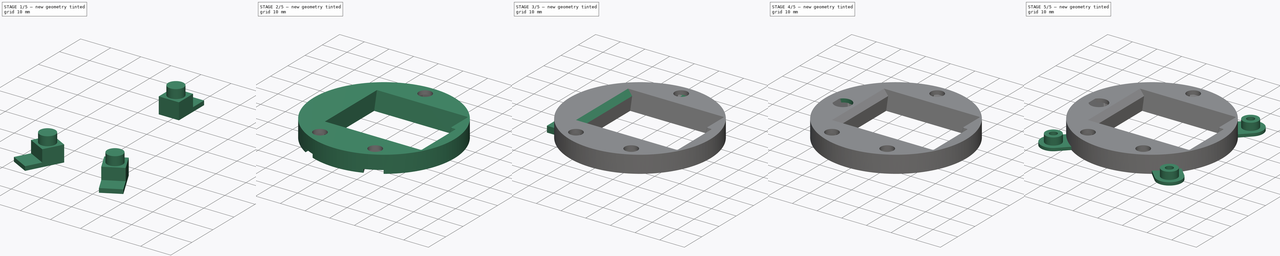
[diagram: build sequence overview — one tinted view per stage of 5, left to right]
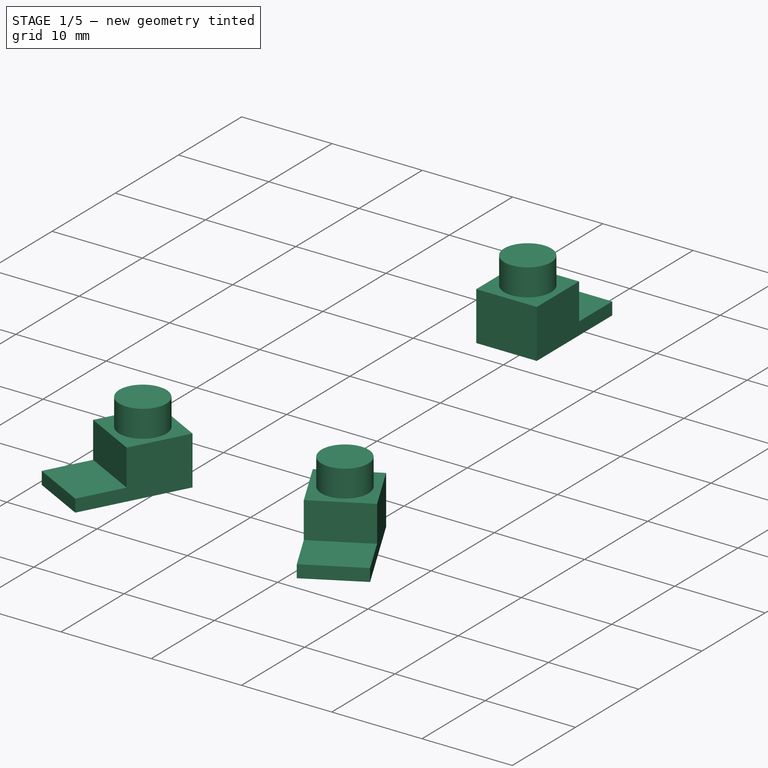
[diagram: stage 1 of 5 — iso view after this stage's code; geometry added in this stage tinted green]
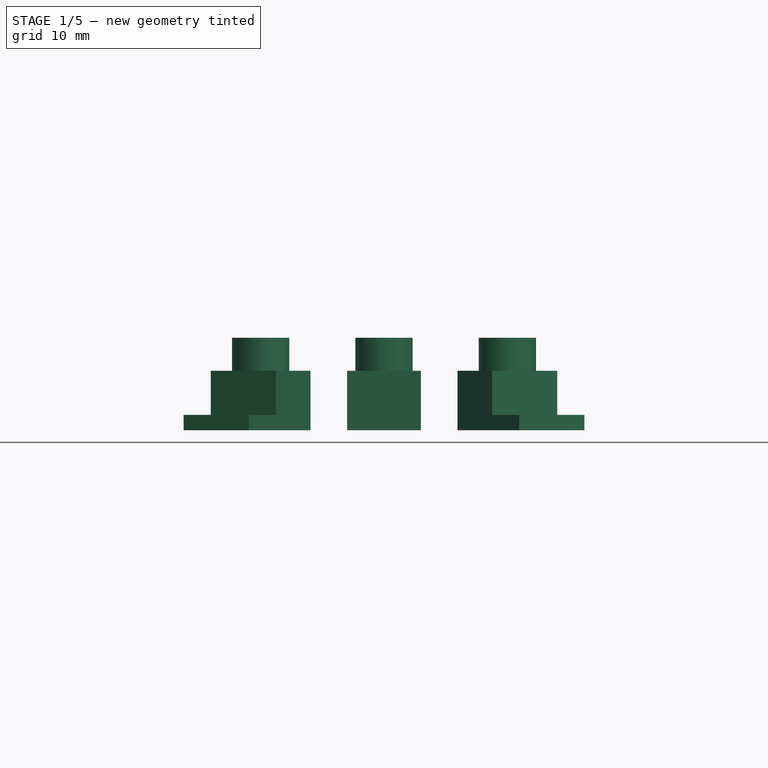
[diagram: stage 1 of 5 — front view after this stage's code; geometry added in this stage tinted green]
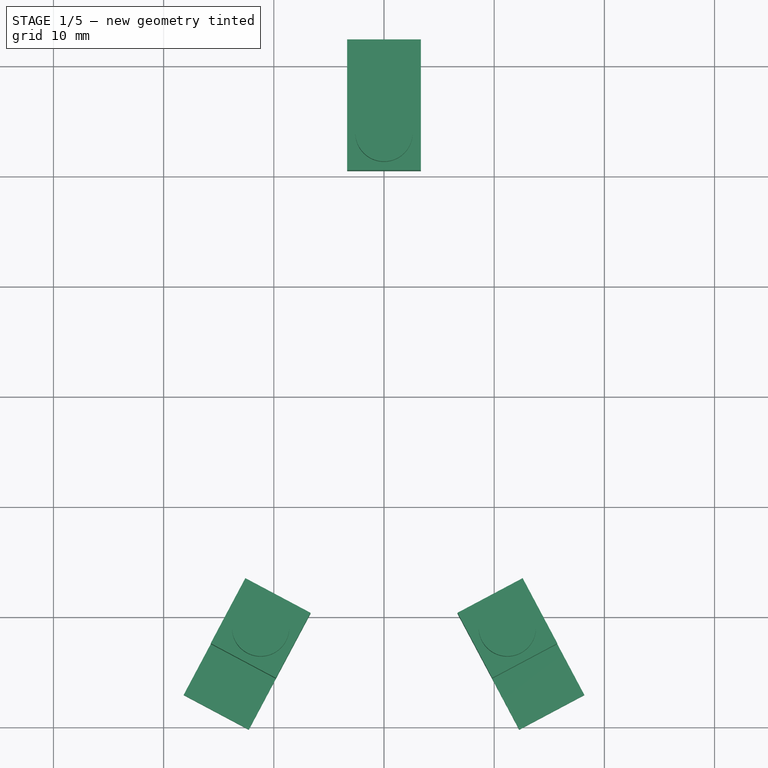
[diagram: stage 1 of 5 — top view after this stage's code; geometry added in this stage tinted green]
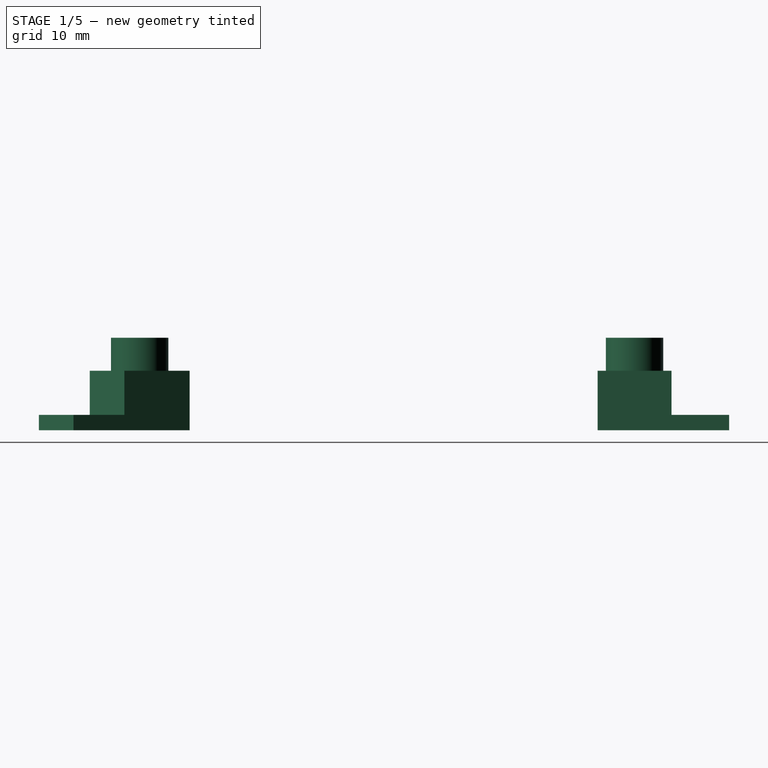
[diagram: stage 1 of 5 — right view after this stage's code; geometry added in this stage tinted green]
FCSTD DOCUMENT  (FreeCAD 0.16R6706 (Git))
Label: bezel_small
License: All rights reserved
LicenseURL: http://en.wikipedia.org/wiki/All_rights_reserved
objects: Sketcher::SketchObject×13, PartDesign::Pad×11, Part::FeaturePython×5, Part::Cut×3, PartDesign::Pocket×2, Part::Chamfer×2, Part::Cone×1, Part::MultiFuse×1, PartDesign::Draft×1, Part::Fillet×1, Part::Compound×1
note: 54 computed .brp shape members not serialized (recipe doc carries the construction recipe); baked Part::Feature solids carry a one-line shape summary decoded from their .brp

FEATURE [Sketcher::SketchObject] Sketch015  label="Sketch (wiring path)"
  sketch-geometry (4):
    g0: LineSegment StartX=3.35 StartY=32.4367 StartZ=0 EndX=-3.35 EndY=32.4367 EndZ=0
    g1: LineSegment StartX=-3.35 StartY=32.4367 StartZ=0 EndX=-3.35 EndY=20.5 EndZ=0
    g2: LineSegment StartX=-3.35 StartY=20.5 StartZ=0 EndX=3.35 EndY=20.5 EndZ=0
    g3: LineSegment StartX=3.35 StartY=20.5 StartZ=0 EndX=3.35 EndY=32.4367 EndZ=0
  constraints (11):
    c: Coincident(g0,g1)
    c: Coincident(g1,g2)
    c: Coincident(g2,g3)
    c: Coincident(g3,g0)
    c: Horizontal(g0)
    c: Horizontal(g2)
    c: Vertical(g1)
    c: Vertical(g3)
    c: DistanceX(g0,g0) = 6.7
    c: Symmetric(g2,g1,g-2)
    c: DistanceY(g-1,g2) = 20.5
FEATURE [PartDesign::Pad] Pad013  label="Pad (wiring path)"
  Length = 1.4
  Length2 = 100
  Sketch = -> Sketch015
  Type = 0
FEATURE [Sketcher::SketchObject] Sketch016  label="Sketch (button body)"
  ExternalGeometry = -> [Pad013]
  Placement = pos=(0,0,1.4) rot=(0,0,1;0rad)
  Support = -> Pad013 [Face6]
  sketch-geometry (4):
    g0: LineSegment StartX=-3.35 StartY=20.5 StartZ=0 EndX=3.35 EndY=20.5 EndZ=0
    g1: LineSegment StartX=3.35 StartY=20.5 StartZ=0 EndX=3.35 EndY=27.2 EndZ=0
    g2: LineSegment StartX=3.35 StartY=27.2 StartZ=0 EndX=-3.35 EndY=27.2 EndZ=0
    g3: LineSegment StartX=-3.35 StartY=27.2 StartZ=0 EndX=-3.35 EndY=20.5 EndZ=0
  constraints (11):
    c: Coincident(g0,g1)
    c: Coincident(g1,g2)
    c: Coincident(g2,g3)
    c: Coincident(g3,g0)
    c: Horizontal(g0)
    c: Horizontal(g2)
    c: Vertical(g1)
    c: Vertical(g3)
    c: Coincident(g0,g-3)
    c: Coincident(g0,g-3)
    c: Equal(g1,g2)
FEATURE [PartDesign::Pad] Pad014  label="Pad (button body)"
  Length = 4
  Length2 = 100
  Sketch = -> Sketch016
  Type = 0
  expr: Length = 5 + 0.4 - 1.4
FEATURE [Sketcher::SketchObject] Sketch018  label="Sketch (button shaft)"
  ExternalGeometry = -> [Pad014]
  Placement = pos=(0,0,5.4) rot=(0,0,1;0rad)
  Support = -> Pad014 [Face11]
  sketch-geometry (3):
    g0: Circle CenterX=0 CenterY=23.85 CenterZ=0 NormalX=0 NormalY=0 NormalZ=1 Radius=2.6
    g1: LineSegment [constr] StartX=-3.35 StartY=27.2 StartZ=0 EndX=3.35 EndY=20.5 EndZ=0
    g2: LineSegment [constr] StartX=3.35 StartY=27.2 StartZ=0 EndX=-3.35 EndY=20.5 EndZ=0
  constraints (7):
    c: Radius(g0) = 2.6
    c: Coincident(g1,g-3)
    c: Coincident(g1,g-4)
    c: Coincident(g2,g-4)
    c: Coincident(g2,g-3)
    c: PointOnObject(g0,g2)
    c: PointOnObject(g0,g1)
FEATURE [PartDesign::Pad] Pad016  label="Pad (button shaft)"
  Length = 3
  Length2 = 100
  Sketch = -> Sketch018
  Type = 0
FEATURE [Part::FeaturePython] Clone012  label="Clone of Pad (button shaft left)"  # Draft clone (typed FeaturePython)
  Objects = -> [Pad016]
  Placement = pos=(0,0,0) rot=(0,0,1;2.6529rad)
  Scale = (1,1,1)
FEATURE [Part::FeaturePython] Clone013  label="Clone of Pad (button shaft right)"  # Draft clone (typed FeaturePython)
  Objects = -> [Pad016]
  Placement = pos=(0,0,0) rot=(0,0,1;3.63029rad)
  Scale = (1,1,1)
FEATURE [Part::Compound] Compound
  Links = -> [Pad016,Clone012,Clone013]
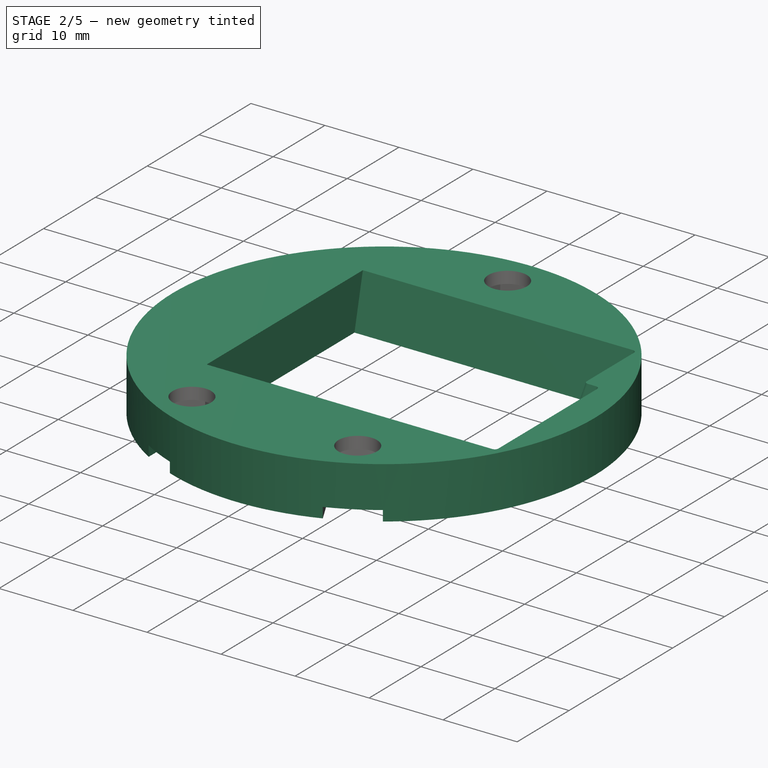
[diagram: stage 2 of 5 — iso view after this stage's code; geometry added in this stage tinted green]
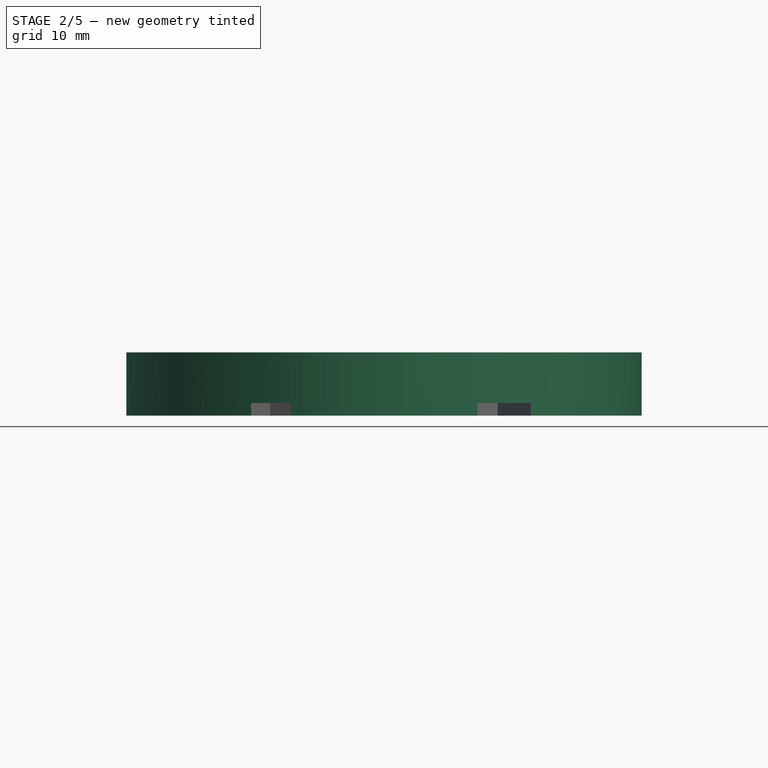
[diagram: stage 2 of 5 — front view after this stage's code; geometry added in this stage tinted green]
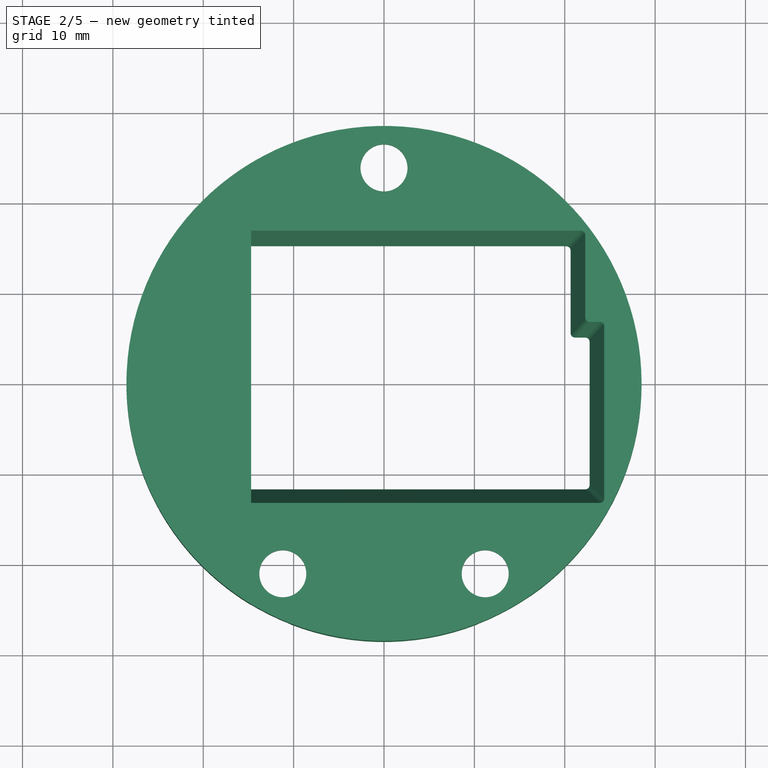
[diagram: stage 2 of 5 — top view after this stage's code; geometry added in this stage tinted green]
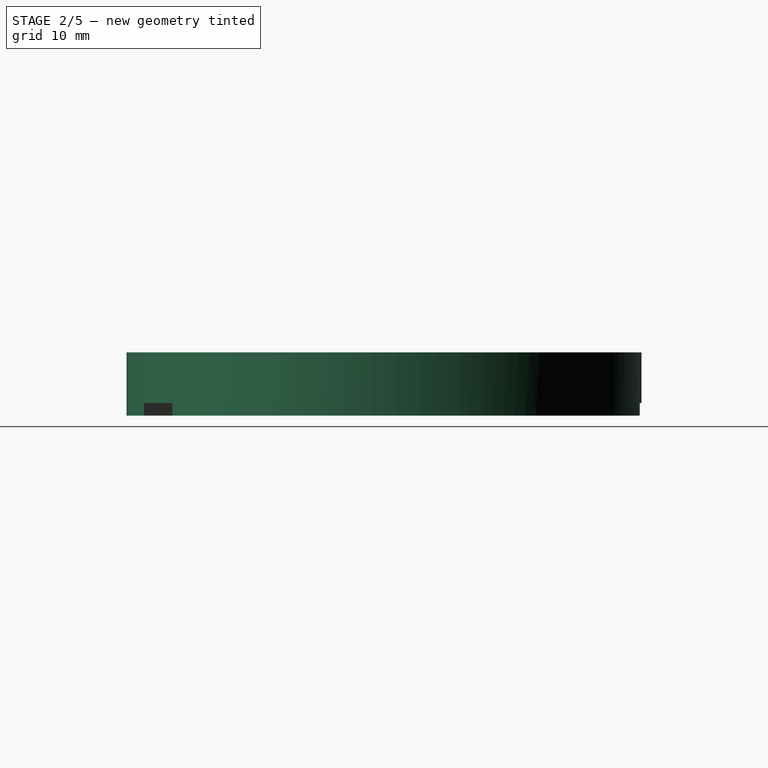
[diagram: stage 2 of 5 — right view after this stage's code; geometry added in this stage tinted green]
FEATURE [Sketcher::SketchObject] Sketch010  label="Sketch (left mount)"
  expr: Constraints[5] = 57 / 2
  sketch-geometry (2):
    g0: ArcOfCircle CenterX=0 CenterY=0 CenterZ=0 NormalX=0 NormalY=0 NormalZ=1 Radius=28.5 StartAngle=2.11273 EndAngle=4.17046
    g1: LineSegment StartX=-14.7 StartY=24.4164 StartZ=0 EndX=-14.7 EndY=-24.4164 EndZ=0
  constraints (6):
    c: Coincident(g0,g-1)
    c: Coincident(g1,g0)
    c: Coincident(g1,g0)
    c: Vertical(g1)
    c: DistanceX(g0,g-1) = 14.7
    c: Radius(g0) = 28.5
FEATURE [PartDesign::Pad] Pad008  label="Pad (left mount)"
  Length = 7
  Length2 = 100
  Sketch = -> Sketch010
  Type = 0
FEATURE [Sketcher::SketchObject] Sketch014
  expr: Constraints[1] = 57 / 2
  sketch-geometry (10):
    g0: Circle CenterX=0 CenterY=0 CenterZ=0 NormalX=0 NormalY=0 NormalZ=1 Radius=28.5
    g1: LineSegment StartX=-20.65 StartY=15.3 StartZ=0 EndX=-20.65 EndY=5.2 EndZ=0
    g2: LineSegment StartX=-20.65 StartY=5.2 StartZ=0 EndX=-22.75 EndY=5.2 EndZ=0
    g3: LineSegment StartX=-22.75 StartY=5.2 StartZ=0 EndX=-22.75 EndY=-11.6 EndZ=0
    g4: LineSegment StartX=-22.75 StartY=-11.6 StartZ=0 EndX=22.75 EndY=-11.6 EndZ=0
    g5: LineSegment StartX=22.75 StartY=-11.6 StartZ=0 EndX=22.75 EndY=5.2 EndZ=0
    g6: LineSegment StartX=22.75 StartY=5.2 StartZ=0 EndX=20.65 EndY=5.2 EndZ=0
    g7: LineSegment StartX=20.65 StartY=5.2 StartZ=0 EndX=20.65 EndY=15.3 EndZ=0
    g8: LineSegment StartX=20.65 StartY=15.3 StartZ=0 EndX=-20.65 EndY=15.3 EndZ=0
    g9: GeomPoint [constr] X=0 Y=-28.5 Z=0
  constraints (28):
    c: Coincident(g0,g-1)
    c: Radius(g0) = 28.5
    c: Vertical(g1)
    c: Coincident(g2,g1)
    c: Horizontal(g2)
    c: Coincident(g3,g2)
    c: Vertical(g3)
    c: Coincident(g4,g3)
    c: Horizontal(g4)
    c: Coincident(g5,g4)
    c: Vertical(g5)
    c: Horizontal(g6)
    c: Coincident(g7,g6)
    c: Vertical(g7)
    c: Coincident(g8,g7)
    c: Coincident(g8,g1)
    c: Horizontal(g8)
    c: Equal(g2,g6)
    c: Equal(g1,g7)
    c: Coincident(g5,g6)
    c: Symmetric(g7,g1,g-2)
    c: DistanceY(g5,g5) = 16.8
    c: DistanceX(g4,g4) = 45.5
    c: DistanceX(g8,g8) = 41.3
    c: DistanceY(g4,g7) = 26.9
    c: PointOnObject(g9,g0)
    c: PointOnObject(g9,g-2)
    c: DistanceY(g9,g4) = 16.9
FEATURE [PartDesign::Pad] Pad012
  Length = 7
  Length2 = 100
  Sketch = -> Sketch014
  Type = 0
FEATURE [PartDesign::Draft] Draft  label="Draft (clock bezel)"
  Angle = 13
  Base = -> Pad012 [Face9,Face2,Face3,Face4,Face5,Face6,Face7,Face8]
  NeutralPlane = -> Pad012 [Face10]
  Reversed = true
FEATURE [Part::Fillet] Fillet  label="Fillet (clock bezel)"
  Base = -> Draft
  Edges = 8 edges r=0.5: [Edge4,Edge5,Edge8,Edge11,Edge14,Edge17,Edge20,Edge23]
FEATURE [Part::Cut] Cut002  label="Cut (clock bezel)"
  Base = -> Fillet
  Tool = -> Compound
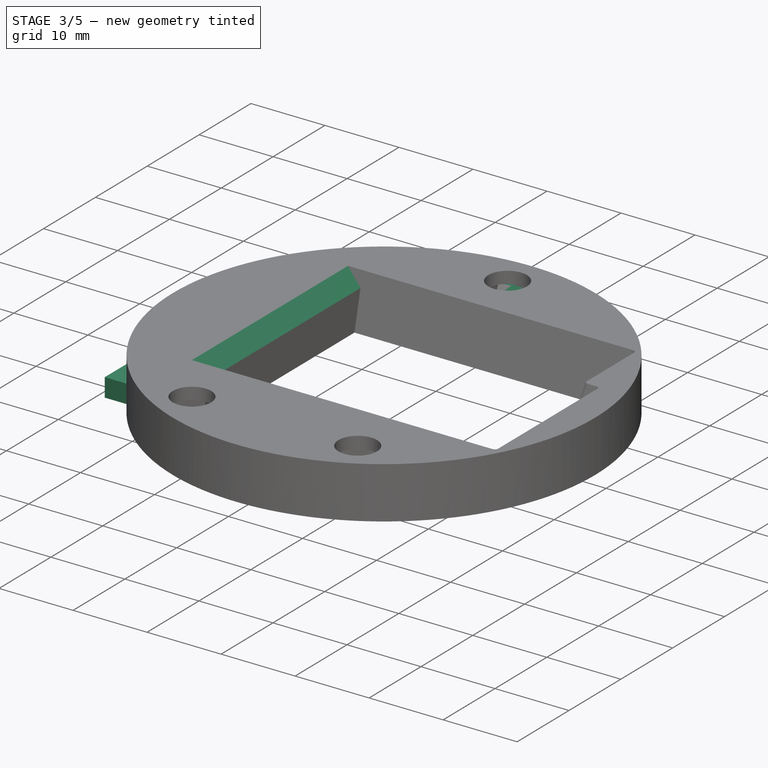
[diagram: stage 3 of 5 — iso view after this stage's code; geometry added in this stage tinted green]
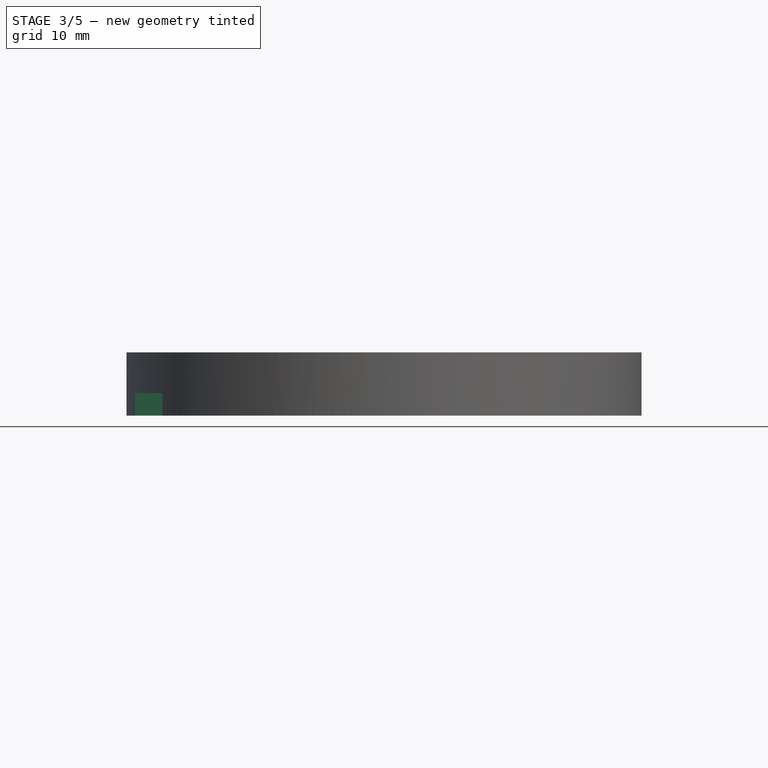
[diagram: stage 3 of 5 — front view after this stage's code; geometry added in this stage tinted green]
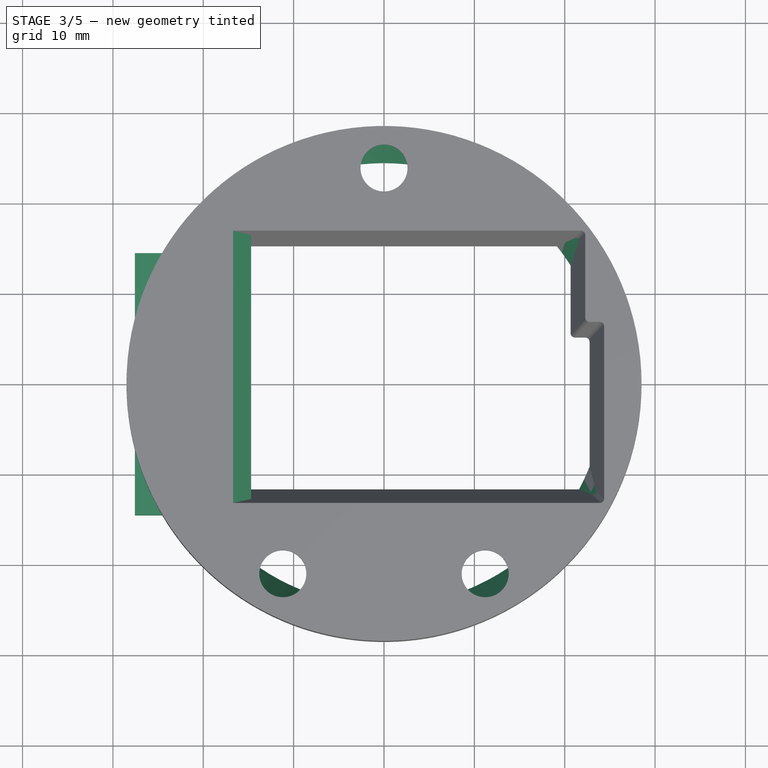
[diagram: stage 3 of 5 — top view after this stage's code; geometry added in this stage tinted green]
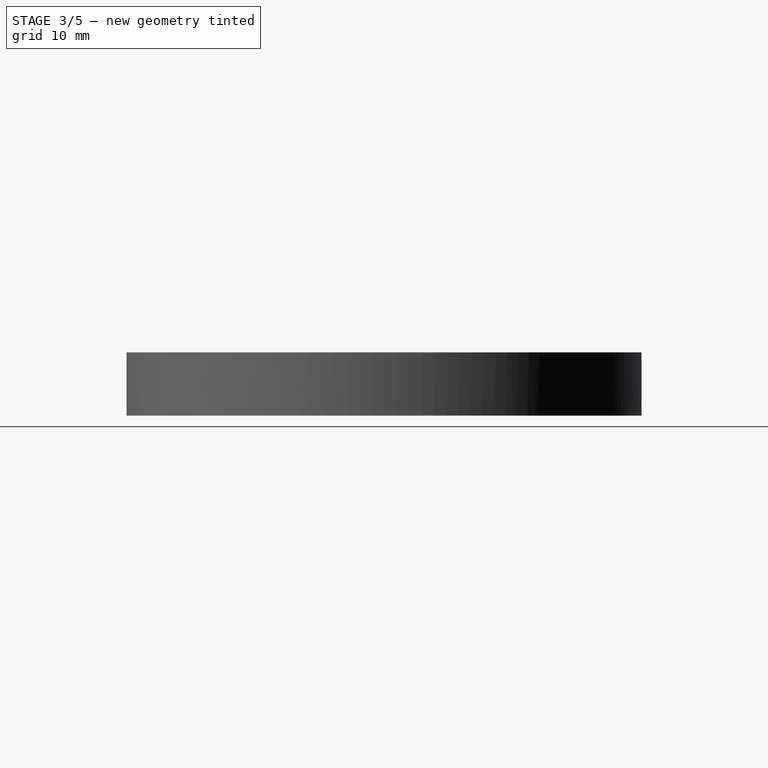
[diagram: stage 3 of 5 — right view after this stage's code; geometry added in this stage tinted green]
FEATURE [Sketcher::SketchObject] Sketch004  label="Sketch (ring)"
  expr: Constraints[1] = 28.5 - 4
  expr: Constraints[3] = 57 / 2
  sketch-geometry (2):
    g0: Circle CenterX=0 CenterY=0 CenterZ=0 NormalX=0 NormalY=0 NormalZ=1 Radius=24.5
    g1: Circle CenterX=0 CenterY=0 CenterZ=0 NormalX=0 NormalY=0 NormalZ=1 Radius=28.5
  constraints (4):
    c: Coincident(g0,g-1)
    c: Radius(g0) = 24.5
    c: Coincident(g1,g-1)
    c: Radius(g1) = 28.5
FEATURE [PartDesign::Pad] Pad002  label="Pad (ring)"
  Length = 7
  Length2 = 100
  Sketch = -> Sketch004
  Type = 0
FEATURE [Part::Cone] Cone
  Angle = 360
  Height = 7
  Radius1 = 24.5
  Radius2 = 28.5
  expr: Radius1 = 57 / 2 - 4
  expr: Radius2 = 57 / 2
FEATURE [Part::Cut] Cut  label="Cut (ring chamfer)"
  Base = -> Pad002
  Tool = -> Cone
FEATURE [Part::Chamfer] Chamfer001  label="Chamfer (left mount)"
  Base = -> Pad008
  Edges = 1 edges r=2: [Edge6]
FEATURE [Sketcher::SketchObject] Sketch011  label="Sketch (enc wiring cutout)"
  sketch-geometry (7):
    g0: LineSegment [constr] StartX=0 StartY=0 StartZ=0 EndX=-21.5 EndY=-2e-12 EndZ=0
    g1: LineSegment StartX=-15.43 StartY=14.5 StartZ=0 EndX=-15.43 EndY=-14.5 EndZ=0
    g2: LineSegment StartX=-15.43 StartY=-14.5 StartZ=0 EndX=-27.57 EndY=-14.5 EndZ=0
    g3: LineSegment StartX=-27.57 StartY=-14.5 StartZ=0 EndX=-27.57 EndY=14.5 EndZ=0
    g4: LineSegment StartX=-27.57 StartY=14.5 StartZ=0 EndX=-15.43 EndY=14.5 EndZ=0
    g5: LineSegment [constr] StartX=-27.57 StartY=14.5 StartZ=0 EndX=-15.43 EndY=-14.5 EndZ=0
    g6: LineSegment [constr] StartX=-15.43 StartY=14.5 StartZ=0 EndX=-27.57 EndY=-14.5 EndZ=0
  constraints (18):
    c: Coincident(g0,g-1)
    c: Angle(g-2,g0) = 1.5708
    c: Coincident(g1,g2)
    c: Coincident(g2,g3)
    c: Coincident(g3,g4)
    c: Coincident(g4,g1)
    c: Parallel(g4,g2)
    c: Parallel(g1,g3)
    c: Perpendicular(g4,g1)
    c: Symmetric(g1,g1,g0)
    c: Distance(g4) = 12.14
    c: Distance(g1) = 29
    c: Coincident(g5,g3)
    c: Coincident(g5,g1)
    c: Coincident(g6,g1)
    c: Coincident(g6,g2)
    c: PointOnObject(g0,g5)
    c: Distance(g0) = 21.5
FEATURE [PartDesign::Pad] Pad009  label="Pad (enc wiring cutout)"
  Length = 2.5
  Length2 = 100
  Sketch = -> Sketch011
  Type = 0
FEATURE [Part::MultiFuse] Fusion  label="Fusion (left mount)"
  Shapes = -> [Cut,Chamfer001]
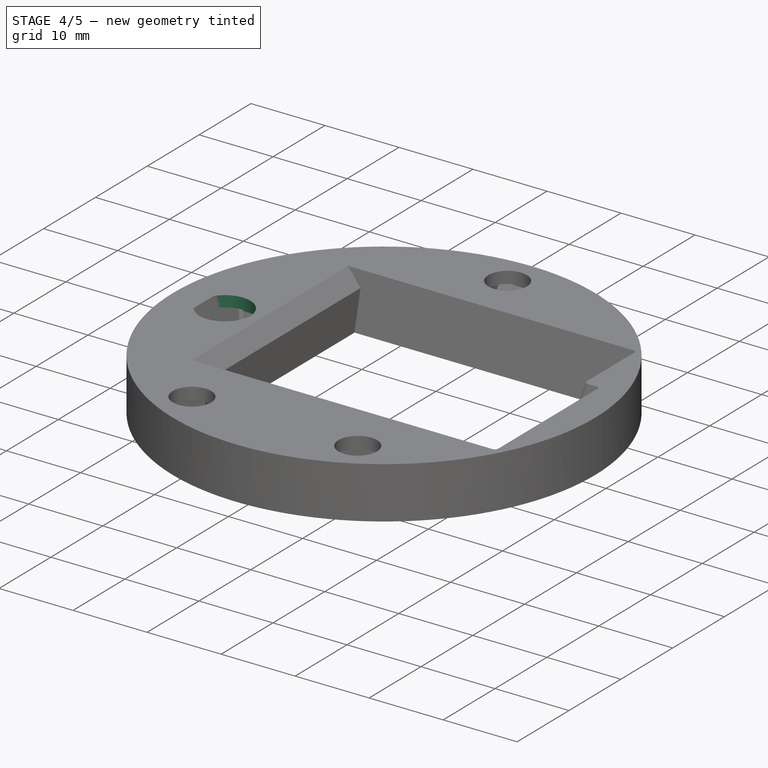
[diagram: stage 4 of 5 — iso view after this stage's code; geometry added in this stage tinted green]
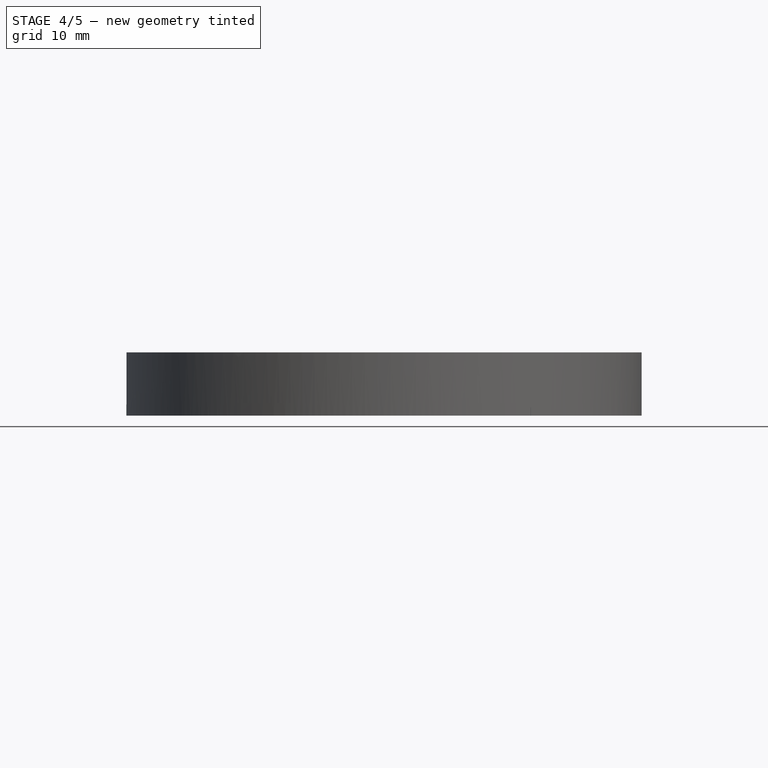
[diagram: stage 4 of 5 — front view after this stage's code; geometry added in this stage tinted green]
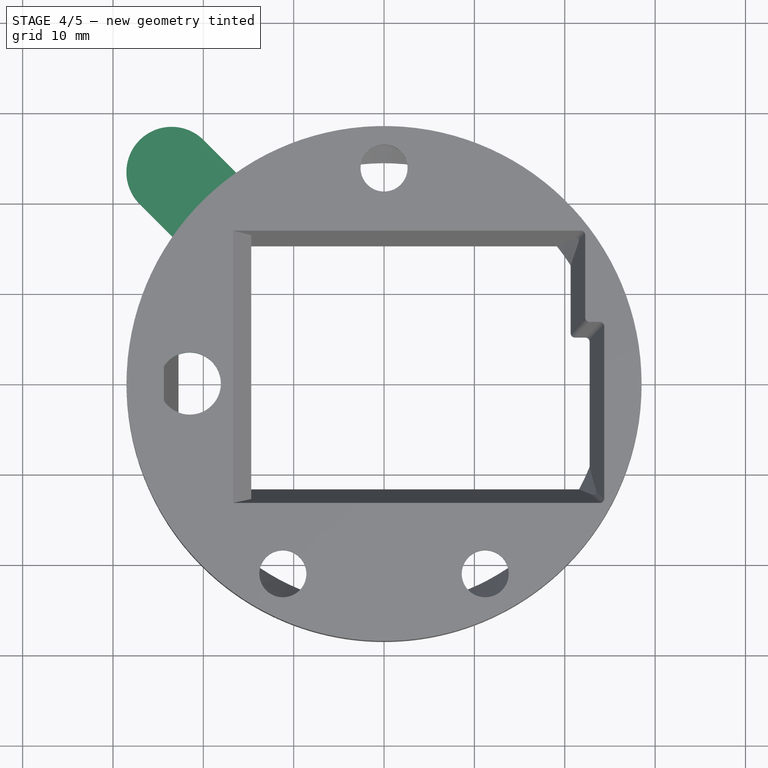
[diagram: stage 4 of 5 — top view after this stage's code; geometry added in this stage tinted green]
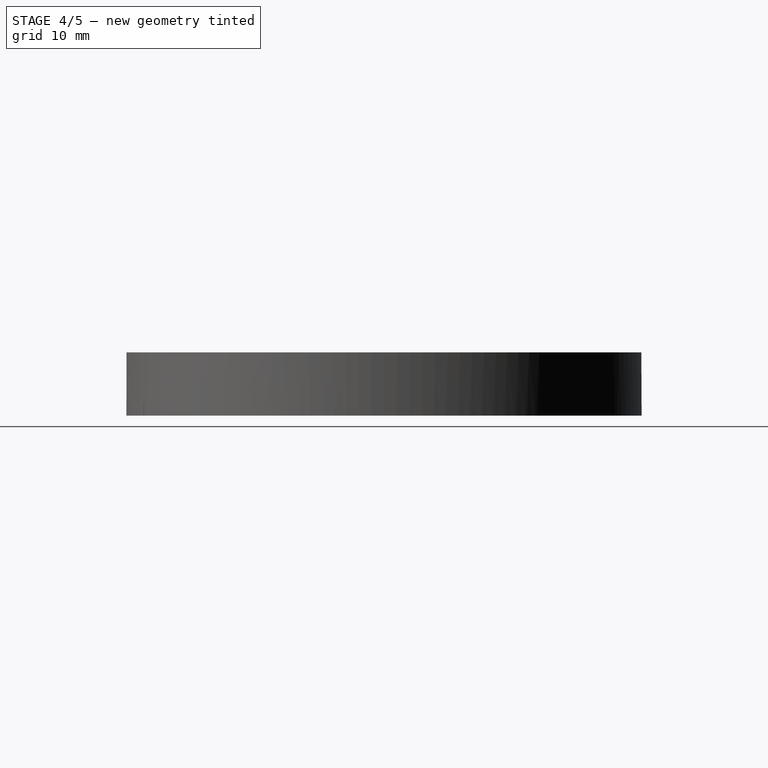
[diagram: stage 4 of 5 — right view after this stage's code; geometry added in this stage tinted green]
FEATURE [Sketcher::SketchObject] Sketch  label="Sketch (tab base)"
  expr: Constraints[3] = 28.5 + 4.75
  sketch-geometry (6):
    g0: LineSegment [constr] StartX=0 StartY=0 StartZ=0 EndX=-23.5113 EndY=23.5113 EndZ=0
    g1: ArcOfCircle CenterX=-23.5113 CenterY=23.5113 CenterZ=0 NormalX=0 NormalY=0 NormalZ=1 Radius=5 StartAngle=0.785398 EndAngle=3.92699
    g2: LineSegment [constr] StartX=-19.9758 StartY=27.0468 StartZ=0 EndX=-27.0468 EndY=19.9758 EndZ=0
    g3: LineSegment StartX=-19.9758 StartY=27.0468 StartZ=0 EndX=-16.3045 EndY=23.3755 EndZ=0
    g4: LineSegment StartX=-23.3755 StartY=16.3045 StartZ=0 EndX=-27.0468 EndY=19.9758 EndZ=0
    g5: ArcOfCircle CenterX=0 CenterY=0 CenterZ=0 NormalX=0 NormalY=0 NormalZ=1 Radius=28.5 StartAngle=2.17984 EndAngle=2.53255
  constraints (17):
    c: Coincident(g0,g-1)
    c: Coincident(g1,g0)
    c: Angle(g-2,g0) = 0.785398
    c: Distance(g0) = 33.25
    c: Coincident(g2,g1)
    c: Coincident(g2,g1)
    c: PointOnObject(g0,g2)
    c: Perpendicular(g2,g0)
    c: Coincident(g3,g1)
    c: Coincident(g4,g1)
    c: Equal(g3,g4)
    c: Coincident(g5,g-1)
    c: Coincident(g5,g3)
    c: Radius(g5) = 28.5
    c: Coincident(g4,g5)
    c: Parallel(g3,g0)
    c: Radius(g1) = 5
FEATURE [PartDesign::Pad] Pad  label="Pad (tab base)"
  Length = 1.2
  Length2 = 100
  Sketch = -> Sketch
  Type = 0
FEATURE [Part::Chamfer] Chamfer002  label="Chamfer (enc wiring cutout)"
  Base = -> Pad009
  Edges = 2 edges r=0.25: [Edge3,Edge9]
FEATURE [Sketcher::SketchObject] Sketch012  label="Sketch (enc base cutout)"
  ExternalGeometry = -> [Pad009]
  Placement = pos=(0,0,2.5) rot=(0,0,1;0rad)
  Support = -> Chamfer002 [Face4]
  sketch-geometry (7):
    g0: LineSegment [constr] StartX=-27.57 StartY=14.5 StartZ=0 EndX=-15.43 EndY=-14.5 EndZ=0
    g1: LineSegment [constr] StartX=-15.43 StartY=14.5 StartZ=0 EndX=-27.57 EndY=-14.5 EndZ=0
    g2: LineSegment StartX=-15.43 StartY=6.09 StartZ=0 EndX=-27.57 EndY=6.09 EndZ=0
    g3: LineSegment StartX=-27.57 StartY=6.09 StartZ=0 EndX=-27.57 EndY=-6.09 EndZ=0
    g4: LineSegment StartX=-27.57 StartY=-6.09 StartZ=0 EndX=-15.43 EndY=-6.09 EndZ=0
    g5: LineSegment StartX=-15.43 StartY=-6.09 StartZ=0 EndX=-15.43 EndY=6.09 EndZ=0
    g6: Circle [constr] CenterX=-21.5 CenterY=-3.4e-11 CenterZ=0 NormalX=0 NormalY=0 NormalZ=1 Radius=8.59843
  constraints (19):
    c: Coincident(g0,g-3)
    c: Coincident(g0,g-4)
    c: Coincident(g1,g-3)
    c: Coincident(g1,g-4)
    c: Coincident(g2,g3)
    c: Coincident(g3,g4)
    c: Coincident(g4,g5)
    c: Coincident(g5,g2)
    c: PointOnObject(g2,g6)
    c: PointOnObject(g3,g6)
    c: PointOnObject(g4,g6)
    c: PointOnObject(g5,g6)
    c: PointOnObject(g6,g0)
    c: PointOnObject(g6,g1)
    c: Equal(g-3,g2)
    c: Parallel(g-3,g2)
    c: Equal(g4,g2)
    c: Equal(g3,g5)
    c: Distance(g3) = 12.18
FEATURE [PartDesign::Pad] Pad010  label="Pad (enc base cutout)"
  Length = 3
  Length2 = 100
  Sketch = -> Sketch012
  Type = 0
FEATURE [Sketcher::SketchObject] Sketch013  label="Sketch (enc shaft cutout)"
  ExternalGeometry = -> [Pad010]
  Placement = pos=(0,0,5.5) rot=(0,0,1;0rad)
  Support = -> Pad010 [Face1]
  sketch-geometry (3):
    g0: Circle CenterX=-21.5 CenterY=-3.4e-11 CenterZ=0 NormalX=0 NormalY=0 NormalZ=1 Radius=3.44
    g1: LineSegment [constr] StartX=-27.57 StartY=6.09 StartZ=0 EndX=-15.43 EndY=-6.09 EndZ=0
    g2: LineSegment [constr] StartX=-27.57 StartY=-6.09 StartZ=0 EndX=-15.43 EndY=6.09 EndZ=0
  constraints (7):
    c: Radius(g0) = 3.44
    c: Coincident(g1,g-3)
    c: Coincident(g1,g-4)
    c: Coincident(g2,g-4)
    c: Coincident(g2,g-3)
    c: PointOnObject(g0,g2)
    c: PointOnObject(g0,g1)
FEATURE [PartDesign::Pad] Pad011  label="Pad (enc shaft cutout)"
  Length = 4
  Length2 = 100
  Sketch = -> Sketch013
  Type = 0
FEATURE [Part::Cut] Cut001  label="Cut (left mount encoder)"
  Base = -> Fusion
  Tool = -> Pad011
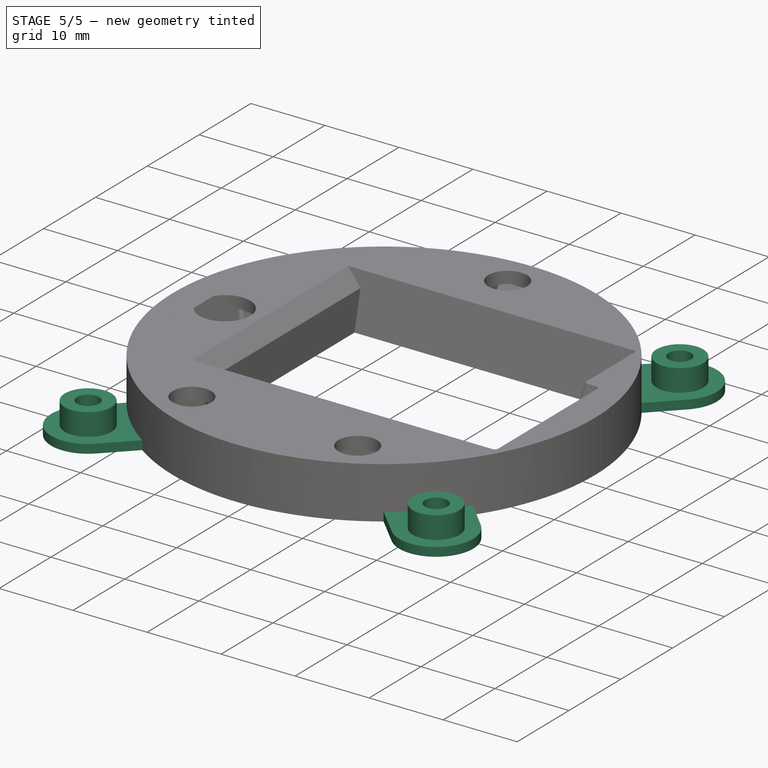
[diagram: stage 5 of 5 — iso view after this stage's code; geometry added in this stage tinted green]
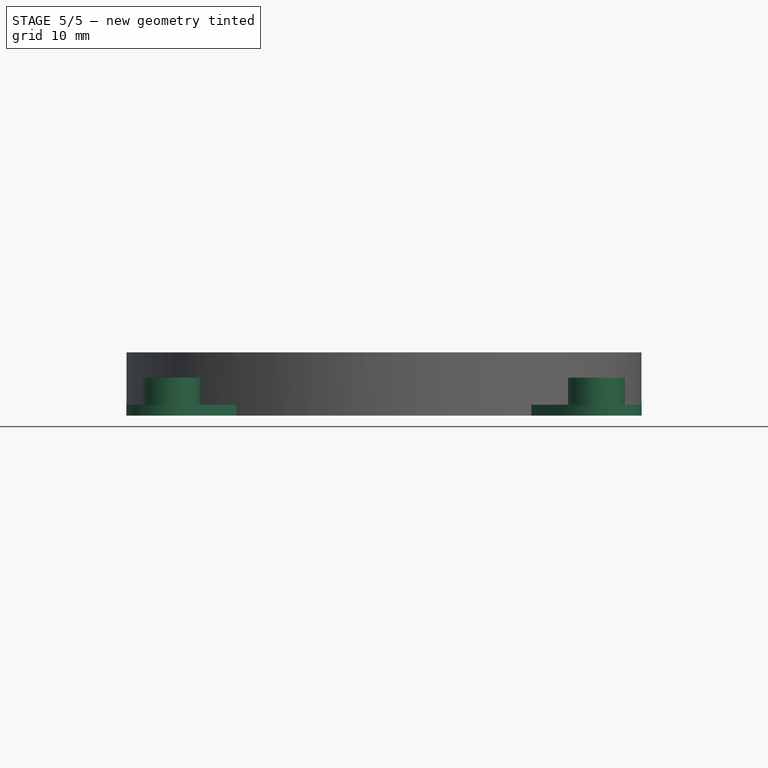
[diagram: stage 5 of 5 — front view after this stage's code; geometry added in this stage tinted green]
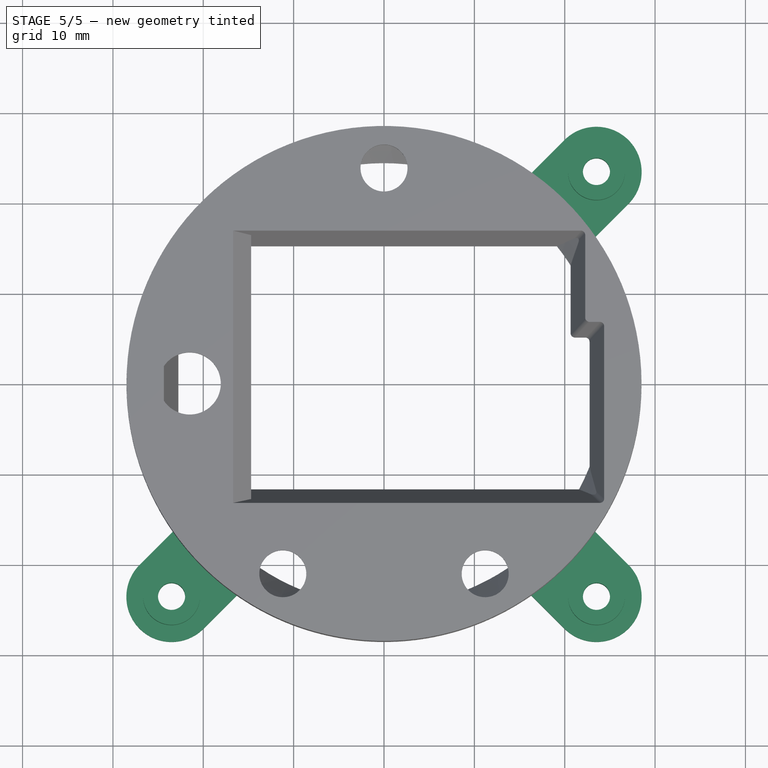
[diagram: stage 5 of 5 — top view after this stage's code; geometry added in this stage tinted green]
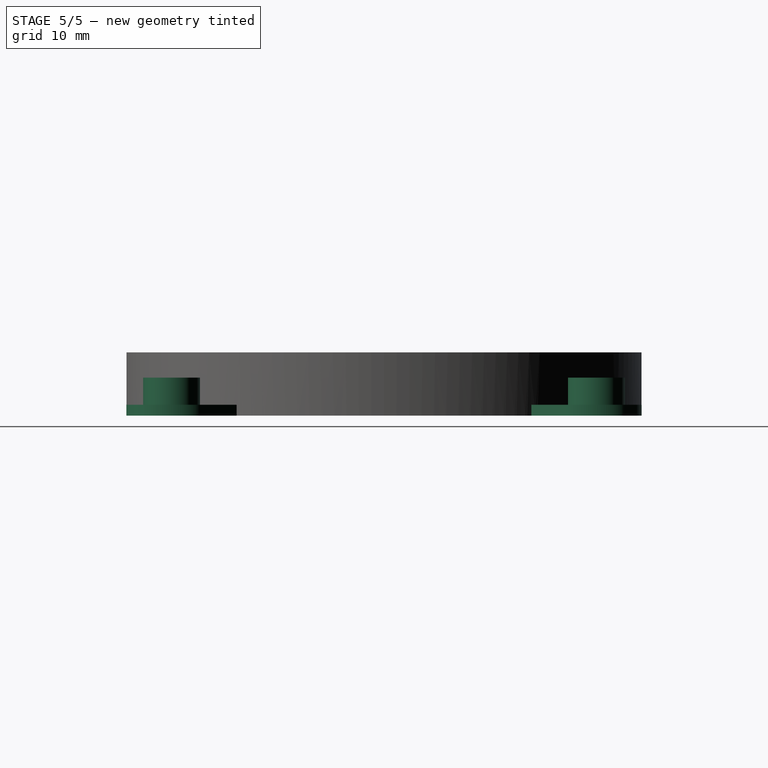
[diagram: stage 5 of 5 — right view after this stage's code; geometry added in this stage tinted green]
FEATURE [Sketcher::SketchObject] Sketch001  label="Sketch (tab peg)"
  ExternalGeometry = -> [Pad]
  Placement = pos=(0,0,1.2) rot=(0,0,1;0rad)
  Support = -> Pad [Face6]
  sketch-geometry (1):
    g0: Circle CenterX=-23.5113 CenterY=23.5113 CenterZ=0 NormalX=0 NormalY=0 NormalZ=1 Radius=3.15
  constraints (2):
    c: Coincident(g0,g-3)
    c: Radius(g0) = 3.15
FEATURE [PartDesign::Pad] Pad001  label="Pad (tab peg)"
  Length = 3
  Length2 = 100
  Sketch = -> Sketch001
  Type = 0
FEATURE [Sketcher::SketchObject] Sketch002  label="Sketch (tab guide)"
  ExternalGeometry = -> [Pad001]
  Placement = pos=(0,0,4.2) rot=(0,0,1;0rad)
  Support = -> Pad001 [Face8]
  sketch-geometry (1):
    g0: Circle CenterX=-23.5113 CenterY=23.5113 CenterZ=0 NormalX=0 NormalY=0 NormalZ=1 Radius=0.8
  constraints (2):
    c: Coincident(g0,g-3)
    c: Radius(g0) = 0.8
FEATURE [PartDesign::Pocket] Pocket  label="Pad (tab guide)"
  Length = 5
  Sketch = -> Sketch002
  Type = 1
FEATURE [Sketcher::SketchObject] Sketch003  label="Sketch (tab screw hole)"
  ExternalGeometry = -> [Pocket]
  Placement = pos=(0,0,4.2) rot=(0,0,1;0rad)
  Support = -> Pocket [Face9]
  sketch-geometry (1):
    g0: Circle CenterX=-23.5113 CenterY=23.5113 CenterZ=0 NormalX=0 NormalY=0 NormalZ=1 Radius=1.5
  constraints (2):
    c: Coincident(g0,g-3)
    c: Radius(g0) = 1.5
FEATURE [PartDesign::Pocket] Pocket001  label="Pocket (tab screw hole)"
  Length = 5
  Sketch = -> Sketch003
  Type = 0
FEATURE [Part::FeaturePython] Clone  label="Tab (bottom left)"  # Draft clone (typed FeaturePython)
  Objects = -> [Pocket001]
  Placement = pos=(0,0,0) rot=(0,0,1;1.5708rad)
  Scale = (1,1,1)
FEATURE [Part::FeaturePython] Clone001  label="Tab (bottom right)"  # Draft clone (typed FeaturePython)
  Objects = -> [Pocket001]
  Placement = pos=(0,0,0) rot=(0,0,1;3.14159rad)
  Scale = (1,1,1)
FEATURE [Part::FeaturePython] Clone002  label="Tab (top right)"  # Draft clone (typed FeaturePython)
  Objects = -> [Pocket001]
  Placement = pos=(0,0,0) rot=(0,0,-1;1.5708rad)
  Scale = (1,1,1)
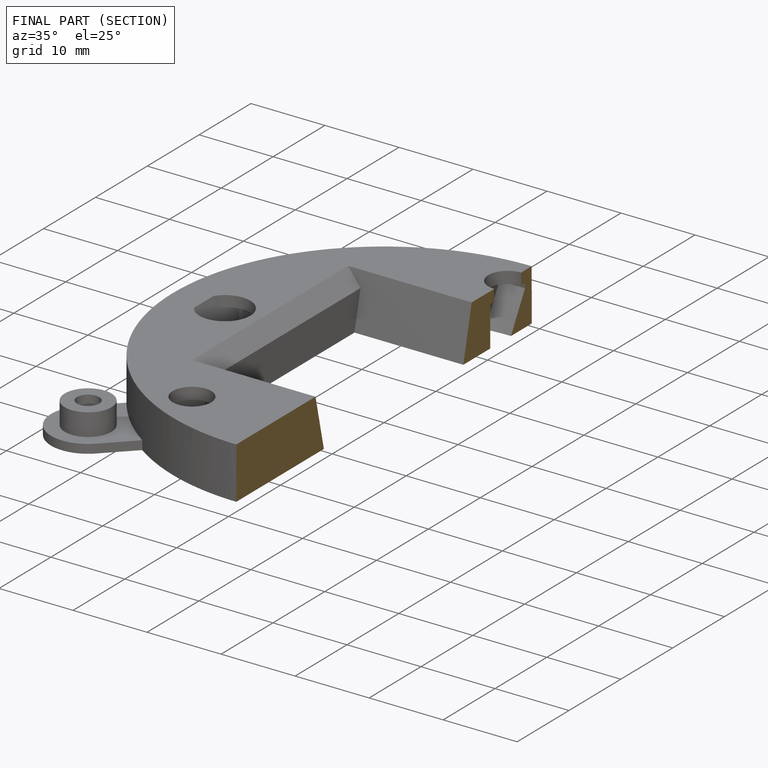
[diagram: finished part — half-section view (interior)]
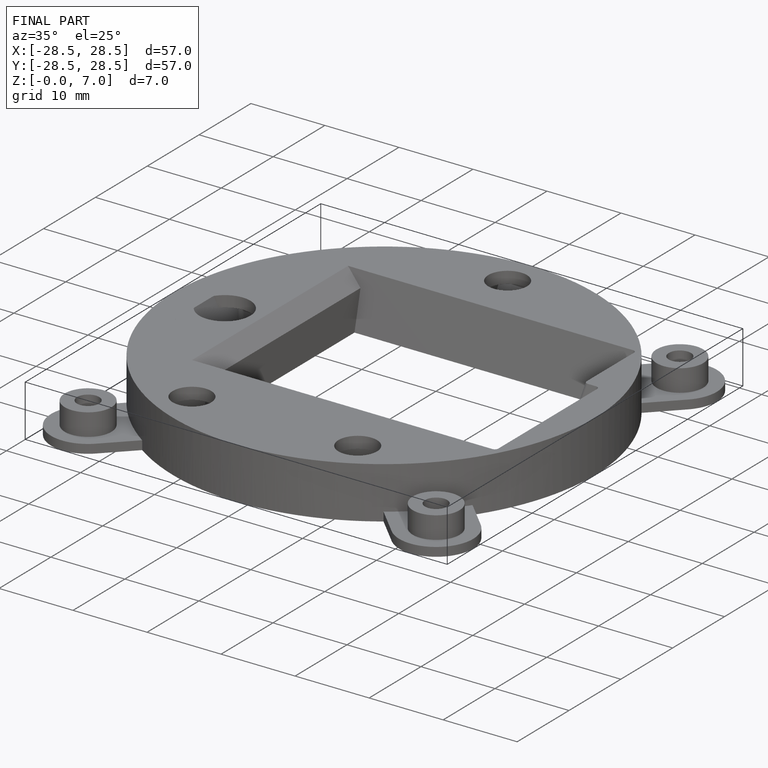
[diagram: finished part — iso view with bounding-box wireframe]
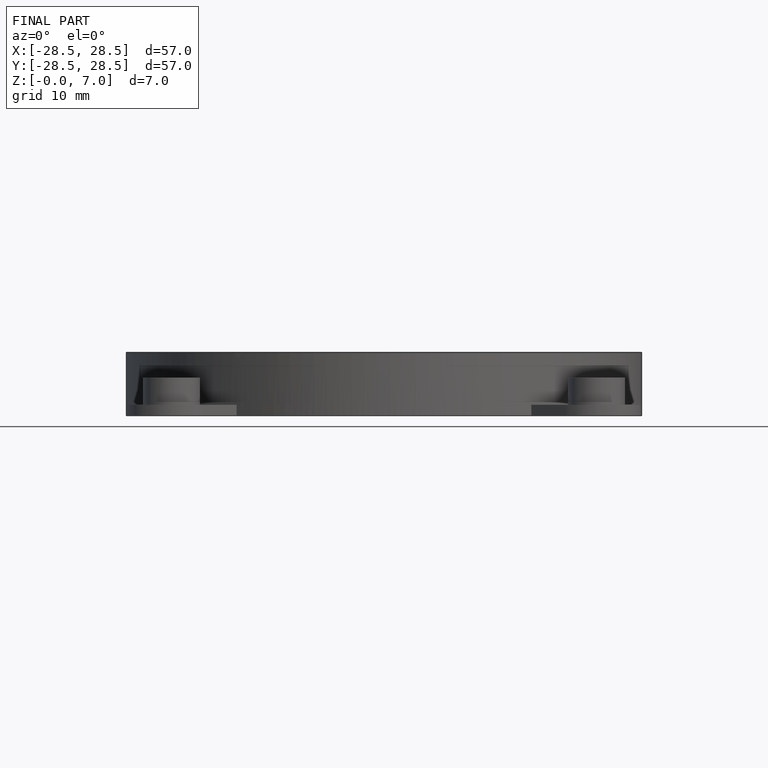
[diagram: finished part — front view with bounding-box wireframe]
